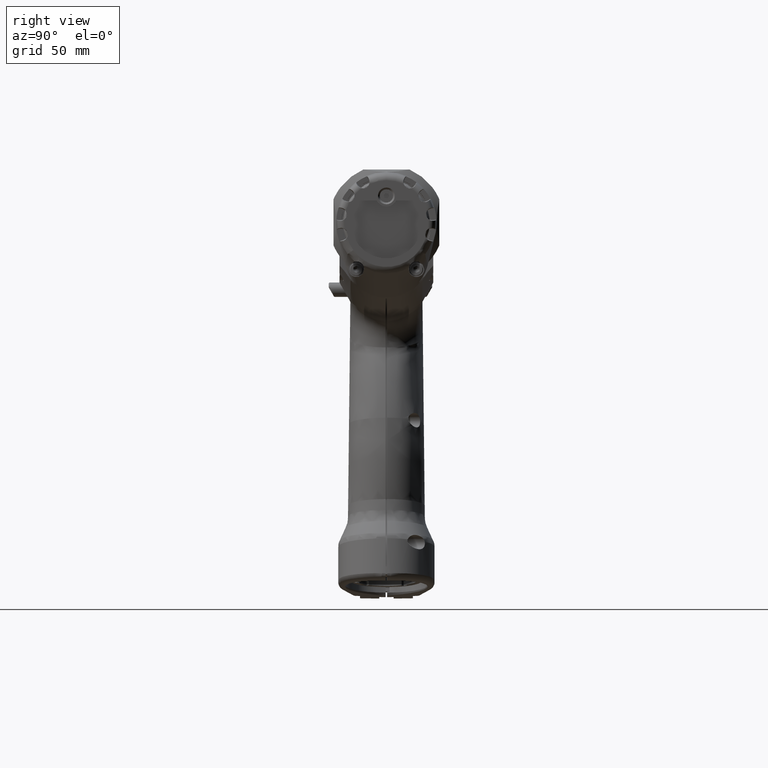
[diagram: clean part render]
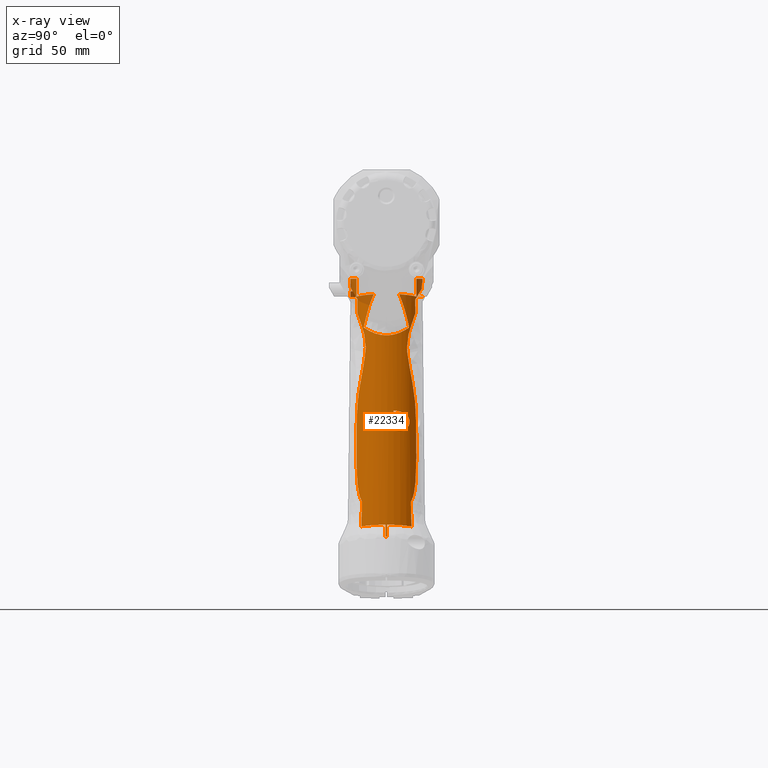
[diagram: x-ray — body ghosted, one internal face saturated and labeled with its STEP entity id]
A machine part, right view, then the same camera in x-ray: the body is ghosted and one INTERNAL B-rep face — a face not visible from any outside direction — is saturated and labeled: STEP entity #22334.
In plain terms, the highlighted cylindrical surface (edge-blend (fillet) strip) has radius 15 mm, axis along (-0.1736, -0, 0.9848).
Its self-contained STEP definition (entity closure, byte-faithful):
#206=FACE_BOUND('',#5345,.T.);
#341=ELLIPSE('',#23630,1401.37150129939,15.);
#346=ELLIPSE('',#23640,86.3815572471617,15.);
#347=ELLIPSE('',#23642,86.3815572471617,15.);
#348=ELLIPSE('',#23645,15.2313991782862,15.);
#349=ELLIPSE('',#23646,15.2313991782862,15.);
#350=ELLIPSE('',#23647,15.2313991782862,15.);
#351=ELLIPSE('',#23648,86.3815572471538,15.);
#352=ELLIPSE('',#23649,15.2313991782862,15.);
#353=ELLIPSE('',#23650,86.3815572471538,15.);
#354=ELLIPSE('',#23651,15.2313991782862,15.);
#355=ELLIPSE('',#23652,15.2313991782862,15.);
#356=ELLIPSE('',#23653,86.3815572471538,15.);
#357=ELLIPSE('',#23654,15.2313991782862,15.);
#358=ELLIPSE('',#23655,86.3815572471538,15.);
#359=ELLIPSE('',#23656,15.2313991782862,15.);
#360=ELLIPSE('',#23657,29.2037089081509,15.);
#361=ELLIPSE('',#23658,29.2037089081509,15.);
#362=ELLIPSE('',#23662,1401.37150129944,15.);
#363=ELLIPSE('',#23663,29.2037089081505,15.);
#364=ELLIPSE('',#23664,15.0031929664305,15.);
#365=ELLIPSE('',#23665,29.2037089081505,15.);
#366=ELLIPSE('',#23666,15.2313991782862,15.);
#367=ELLIPSE('',#23667,15.2313991782862,15.);
#368=ELLIPSE('',#23668,15.2313991782862,15.);
#369=ELLIPSE('',#23669,15.2313991782862,15.);
#441=CYLINDRICAL_SURFACE('',#23643,15.);
#843=LINE('',#33489,#2199);
#844=LINE('',#33495,#2200);
#845=LINE('',#33546,#2201);
#846=LINE('',#33633,#2202);
#847=LINE('',#33637,#2203);
#848=LINE('',#33778,#2204);
#849=LINE('',#33813,#2205);
#850=LINE('',#33819,#2206);
#851=LINE('',#33823,#2207);
#852=LINE('',#33825,#2208);
#853=LINE('',#33863,#2209);
#854=LINE('',#33865,#2210);
#2199=VECTOR('',#25764,10.);
#2200=VECTOR('',#25769,10.);
#2201=VECTOR('',#25790,10.);
#2202=VECTOR('',#25797,10.);
#2203=VECTOR('',#25800,10.);
#2204=VECTOR('',#25811,10.);
#2205=VECTOR('',#25816,10.);
#2206=VECTOR('',#25821,10.);
#2207=VECTOR('',#25824,10.);
#2208=VECTOR('',#25825,10.);
#2209=VECTOR('',#25826,10.);
#2210=VECTOR('',#25827,10.);
#4103=FACE_OUTER_BOUND('',#5344,.T.);
#5344=EDGE_LOOP('',(#14279,#14280,#14281,#14282,#14283,#14284,#14285,#14286,
#14287,#14288,#14289,#14290,#14291,#14292,#14293,#14294,#14295,#14296,#14297,
#14298,#14299,#14300,#14301,#14302,#14303,#14304,#14305,#14306,#14307,#14308,
#14309,#14310,#14311,#14312,#14313,#14314,#14315,#14316,#14317,#14318,#14319,
#14320,#14321,#14322,#14323,#14324,#14325,#14326,#14327,#14328,#14329,#14330,
#14331,#14332,#14333));
#5345=EDGE_LOOP('',(#14334,#14335,#14336,#14337,#14338,#14339));
#6699=CIRCLE('',#23644,15.);
#6700=CIRCLE('',#23659,15.);
#6701=CIRCLE('',#23660,15.);
#6702=CIRCLE('',#23661,15.);
#6703=CIRCLE('',#23670,15.);
#7620=B_SPLINE_CURVE_WITH_KNOTS('',3,(#33350,#33351,#33352,#33353,#33354,
#33355,#33356,#33357,#33358,#33359),.UNSPECIFIED.,.F.,.F.,(4,1,1,1,1,1,
1,4),(-9.43407938206908,-9.34645512437203,-8.67764039799357,-8.00882567161512,
-7.34001094523666,-6.67119621885821,-6.00238149247976,-5.91476437216787),
 .UNSPECIFIED.);
#7629=B_SPLINE_CURVE_WITH_KNOTS('',3,(#33497,#33498,#33499,#33500,#33501,
#33502),.UNSPECIFIED.,.F.,.F.,(4,2,4),(1.41336247686936,1.47222555878552,
1.52746841040386),.UNSPECIFIED.);
#7630=B_SPLINE_CURVE_WITH_KNOTS('',3,(#33514,#33515,#33516,#33517,#33518,
#33519,#33520,#33521,#33522,#33523,#33524,#33525,#33526,#33527,#33528,#33529,
#33530,#33531,#33532,#33533,#33534),.UNSPECIFIED.,.F.,.F.,(4,2,2,2,2,3,
2,2,2,4),(-0.504535755770058,-0.453428281029144,-0.340057146652401,-0.226686012275658,
-0.113343006137829,0.,0.113355987521332,0.226711975042664,0.340070129186033,
0.402312760050447),.UNSPECIFIED.);
#7631=B_SPLINE_CURVE_WITH_KNOTS('',3,(#33550,#33551,#33552,#33553,#33554,
#33555,#33556,#33557,#33558,#33559),.UNSPECIFIED.,.F.,.F.,(4,2,2,2,4),(-0.872896181942799,
-0.695055216908452,-0.495357623600965,-0.246816485951664,-8.48295365042754E-5),
 .UNSPECIFIED.);
#7632=B_SPLINE_CURVE_WITH_KNOTS('',3,(#33561,#33562,#33563,#33564,#33565,
#33566,#33567,#33568,#33569,#33570),.UNSPECIFIED.,.F.,.F.,(4,2,2,2,4),(-0.471555246756401,
-0.363498152746199,-0.241680514144593,-0.121602108709056,-1.1296861390786E-8),
 .UNSPECIFIED.);
#7633=B_SPLINE_CURVE_WITH_KNOTS('',3,(#33573,#33574,#33575,#33576,#33577,
#33578,#33579,#33580,#33581,#33582,#33583,#33584,#33585,#33586),
 .UNSPECIFIED.,.F.,.F.,(4,2,2,2,2,2,4),(-1.8371476758041,-1.41697238843742,
-1.31746704578439,-1.12215688097419,-0.808788608466538,-0.331835297722892,
0.),.UNSPECIFIED.);
#7634=B_SPLINE_CURVE_WITH_KNOTS('',3,(#33588,#33589,#33590,#33591,#33592,
#33593,#33594,#33595,#33596,#33597,#33598,#33599,#33600,#33601,#33602,#33603,
#33604,#33605,#33606,#33607,#33608,#33609,#33610,#33611),.UNSPECIFIED.,
 .F.,.F.,(4,2,2,2,2,2,2,2,2,2,2,4),(-7.1377589528692,-6.25051967891776,
-4.88190908479126,-3.26561527198286,-1.79759368050005,-1.24712298832141,
-0.450616918256725,-0.273538035244728,-0.143653735465666,-0.0894673585636338,
-0.0468714420017971,0.),.UNSPECIFIED.);
#7635=B_SPLINE_CURVE_WITH_KNOTS('',3,(#33613,#33614,#33615,#33616,#33617,
#33618,#33619,#33620,#33621,#33622),.UNSPECIFIED.,.F.,.F.,(4,2,2,2,4),(-3.86148213735537,
-3.39266933772831,-2.87356323469633,-1.51013331390801,0.),.UNSPECIFIED.);
#7636=B_SPLINE_CURVE_WITH_KNOTS('',3,(#33624,#33625,#33626,#33627,#33628,
#33629),.UNSPECIFIED.,.F.,.F.,(4,2,4),(-1.04394372933342,-0.525788596849744,
-0.0103910179322628),.UNSPECIFIED.);
#7637=B_SPLINE_CURVE_WITH_KNOTS('',3,(#33641,#33642,#33643,#33644,#33645,
#33646),.UNSPECIFIED.,.F.,.F.,(4,2,4),(-1.04165762028142,-0.52521994911353,
-0.00757868006631604),.UNSPECIFIED.);
#7638=B_SPLINE_CURVE_WITH_KNOTS('',3,(#33648,#33649,#33650,#33651,#33652,
#33653,#33654,#33655),.UNSPECIFIED.,.F.,.F.,(4,2,2,4),(-4.27574192417831,
-1.78840951903899,-0.537285308337105,-0.0140010815732905),.UNSPECIFIED.);
#7639=B_SPLINE_CURVE_WITH_KNOTS('',3,(#33657,#33658,#33659,#33660,#33661,
#33662,#33663,#33664,#33665,#33666,#33667,#33668,#33669,#33670,#33671,#33672,
#33673,#33674,#33675,#33676,#33677,#33678,#33679,#33680,#33681,#33682,#33683,
#33684,#33685,#33686,#33687,#33688,#33689,#33690,#33691,#33692,#33693,#33694,
#33695,#33696,#33697,#33698,#33699,#33700,#33701,#33702,#33703,#33704,#33705,
#33706,#33707,#33708,#33709,#33710,#33711,#33712,#33713,#33714,#33715,#33716,
#33717,#33718,#33719,#33720,#33721,#33722,#33723,#33724,#33725,#33726,#33727,
#33728,#33729),.UNSPECIFIED.,.F.,.F.,(4,3,3,3,3,3,3,3,3,3,3,3,3,3,3,3,3,
3,3,3,3,3,3,3,4),(-4.74655891951947,-4.4298427899212,-4.22097926067444,
-3.99301161076143,-3.84157828306652,-3.66310109053939,-3.56017584101451,
-3.51094005257503,-3.47046319615862,-3.42012998091653,-3.3887024719645,
-3.30975903656049,-3.17741710986917,-3.05732247338803,-2.85816492430465,
-2.65816524947218,-2.35896705505633,-2.14022206240839,-1.52409366864195,
-1.48371508760935,-0.955927055706892,-0.577116652488574,-0.510136676541541,
-0.476726714547285,0.),.UNSPECIFIED.);
#7640=B_SPLINE_CURVE_WITH_KNOTS('',3,(#33731,#33732,#33733,#33734,#33735,
#33736,#33737,#33738,#33739,#33740,#33741,#33742,#33743,#33744,#33745,#33746),
 .UNSPECIFIED.,.F.,.F.,(4,2,2,2,2,2,2,4),(-2.90599288895172,-2.30042910259975,
-1.66431935605397,-0.880758719504933,-0.343849462214899,-0.181811746087896,
-0.0893653226205398,0.),.UNSPECIFIED.);
#7641=B_SPLINE_CURVE_WITH_KNOTS('',3,(#33752,#33753,#33754,#33755,#33756,
#33757,#33758,#33759,#33760,#33761,#33762,#33763),.UNSPECIFIED.,.F.,.F.,
(4,2,2,2,2,4),(-3.60408821507306,-3.43978750084997,-3.20874769180885,-2.97499778461143,
-2.73919837306629,-2.69880571716325),.UNSPECIFIED.);
#7642=B_SPLINE_CURVE_WITH_KNOTS('',3,(#33767,#33768,#33769,#33770,#33771,
#33772,#33773,#33774),.UNSPECIFIED.,.F.,.F.,(4,2,2,4),(-0.873097869011688,
-0.553712528575425,-0.267935953245929,-2.48722430871137E-5),
 .UNSPECIFIED.);
#7643=B_SPLINE_CURVE_WITH_KNOTS('',3,(#33782,#33783,#33784,#33785,#33786,
#33787,#33788,#33789,#33790,#33791,#33792,#33793,#33794,#33795,#33796,#33797,
#33798,#33799,#33800,#33801,#33802),.UNSPECIFIED.,.F.,.F.,(4,2,2,2,3,2,
2,2,2,4),(-0.402312760050445,-0.340070129186033,-0.226711975042664,-0.113355987521332,
0.,0.11334300613783,0.226686012275659,0.340057146652401,0.453428281029142,
0.504535755727442),.UNSPECIFIED.);
#7644=B_SPLINE_CURVE_WITH_KNOTS('',3,(#33806,#33807,#33808,#33809,#33810,
#33811),.UNSPECIFIED.,.F.,.F.,(4,2,4),(0.460183930456899,0.515552014799421,
0.574415096715581),.UNSPECIFIED.);
#7645=B_SPLINE_CURVE_WITH_KNOTS('',3,(#33827,#33828,#33829,#33830,#33831,
#33832,#33833,#33834,#33835,#33836,#33837,#33838,#33839,#33840,#33841,#33842,
#33843,#33844,#33845,#33846,#33847,#33848,#33849,#33850,#33851,#33852,#33853,
#33854,#33855,#33856,#33857,#33858,#33859,#33860,#33861),.UNSPECIFIED.,
 .F.,.F.,(4,2,2,2,2,2,2,2,3,2,2,2,2,2,2,2,4),(-1.11002845335568,-1.04697574713936,
-0.826601000307019,-0.606226253474676,-0.385851506642333,-0.215064211343963,
-0.134461524434502,-0.067230762217251,0.,0.0672307622172497,0.134461524434499,
0.215064211343962,0.385851506642332,0.606226253474675,0.826601000307017,
1.04697574713936,1.11002845335579),.UNSPECIFIED.);
#7646=B_SPLINE_CURVE_WITH_KNOTS('',3,(#33866,#33867,#33868,#33869,#33870,
#33871,#33872,#33873,#33874,#33875,#33876,#33877,#33878,#33879,#33880,#33881,
#33882,#33883,#33884,#33885,#33886,#33887,#33888,#33889,#33890,#33891,#33892,
#33893,#33894,#33895),.UNSPECIFIED.,.F.,.F.,(4,2,2,2,2,2,2,2,2,2,2,2,2,
2,4),(1.47541733219,1.4816071680005,1.77347020777492,1.89326882561379,2.01306744345265,
2.19627784995242,2.2878830532023,2.37948825645219,2.47109345970207,2.56269866295195,
2.74590906945172,2.86570768729059,2.98550630512946,3.27736934490387,3.28355916545716),
 .UNSPECIFIED.);
#8587=VERTEX_POINT('',#33336);
#8588=VERTEX_POINT('',#33349);
#8594=VERTEX_POINT('',#33395);
#8595=VERTEX_POINT('',#33412);
#8607=VERTEX_POINT('',#33468);
#8610=VERTEX_POINT('',#33476);
#8614=VERTEX_POINT('',#33486);
#8615=VERTEX_POINT('',#33488);
#8616=VERTEX_POINT('',#33490);
#8617=VERTEX_POINT('',#33492);
#8618=VERTEX_POINT('',#33494);
#8619=VERTEX_POINT('',#33496);
#8620=VERTEX_POINT('',#33503);
#8621=VERTEX_POINT('',#33505);
#8622=VERTEX_POINT('',#33507);
#8623=VERTEX_POINT('',#33509);
#8624=VERTEX_POINT('',#33511);
#8625=VERTEX_POINT('',#33513);
#8626=VERTEX_POINT('',#33535);
#8627=VERTEX_POINT('',#33537);
#8628=VERTEX_POINT('',#33539);
#8629=VERTEX_POINT('',#33541);
#8630=VERTEX_POINT('',#33543);
#8631=VERTEX_POINT('',#33545);
#8632=VERTEX_POINT('',#33547);
#8633=VERTEX_POINT('',#33549);
#8634=VERTEX_POINT('',#33560);
#8635=VERTEX_POINT('',#33572);
#8636=VERTEX_POINT('',#33587);
#8637=VERTEX_POINT('',#33612);
#8638=VERTEX_POINT('',#33623);
#8639=VERTEX_POINT('',#33630);
#8640=VERTEX_POINT('',#33632);
#8641=VERTEX_POINT('',#33634);
#8642=VERTEX_POINT('',#33636);
#8643=VERTEX_POINT('',#33638);
#8644=VERTEX_POINT('',#33640);
#8645=VERTEX_POINT('',#33647);
#8646=VERTEX_POINT('',#33656);
#8647=VERTEX_POINT('',#33730);
#8648=VERTEX_POINT('',#33747);
#8649=VERTEX_POINT('',#33749);
#8650=VERTEX_POINT('',#33751);
#8651=VERTEX_POINT('',#33764);
#8652=VERTEX_POINT('',#33766);
#8653=VERTEX_POINT('',#33775);
#8654=VERTEX_POINT('',#33777);
#8655=VERTEX_POINT('',#33779);
#8656=VERTEX_POINT('',#33781);
#8657=VERTEX_POINT('',#33803);
#8658=VERTEX_POINT('',#33805);
#8659=VERTEX_POINT('',#33812);
#8660=VERTEX_POINT('',#33814);
#8661=VERTEX_POINT('',#33816);
#8662=VERTEX_POINT('',#33818);
#8663=VERTEX_POINT('',#33821);
#8664=VERTEX_POINT('',#33822);
#8665=VERTEX_POINT('',#33824);
#8666=VERTEX_POINT('',#33826);
#8667=VERTEX_POINT('',#33862);
#8668=VERTEX_POINT('',#33864);
#10819=EDGE_CURVE('',#8587,#8588,#7620,.T.);
#10827=EDGE_CURVE('',#8594,#8595,#341,.T.);
#10842=EDGE_CURVE('',#8587,#8607,#346,.T.);
#10846=EDGE_CURVE('',#8610,#8588,#347,.T.);
#10851=EDGE_CURVE('',#8614,#8607,#6699,.T.);
#10852=EDGE_CURVE('',#8615,#8614,#843,.T.);
#10853=EDGE_CURVE('',#8616,#8615,#348,.T.);
#10854=EDGE_CURVE('',#8617,#8616,#349,.T.);
#10855=EDGE_CURVE('',#8618,#8617,#844,.T.);
#10856=EDGE_CURVE('',#8619,#8618,#7629,.T.);
#10857=EDGE_CURVE('',#8620,#8619,#350,.T.);
#10858=EDGE_CURVE('',#8621,#8620,#351,.T.);
#10859=EDGE_CURVE('',#8622,#8621,#352,.T.);
#10860=EDGE_CURVE('',#8623,#8622,#353,.T.);
#10861=EDGE_CURVE('',#8624,#8623,#354,.T.);
#10862=EDGE_CURVE('',#8625,#8624,#7630,.T.);
#10863=EDGE_CURVE('',#8626,#8625,#355,.T.);
#10864=EDGE_CURVE('',#8627,#8626,#356,.T.);
#10865=EDGE_CURVE('',#8628,#8627,#357,.T.);
#10866=EDGE_CURVE('',#8629,#8628,#358,.T.);
#10867=EDGE_CURVE('',#8630,#8629,#359,.T.);
#10868=EDGE_CURVE('',#8631,#8630,#845,.T.);
#10869=EDGE_CURVE('',#8632,#8631,#360,.T.);
#10870=EDGE_CURVE('',#8633,#8632,#7631,.T.);
#10871=EDGE_CURVE('',#8634,#8633,#7632,.T.);
#10872=EDGE_CURVE('',#8595,#8634,#361,.T.);
#10873=EDGE_CURVE('',#8635,#8594,#7633,.T.);
#10874=EDGE_CURVE('',#8636,#8635,#7634,.T.);
#10875=EDGE_CURVE('',#8637,#8636,#7635,.T.);
#10876=EDGE_CURVE('',#8638,#8637,#7636,.T.);
#10877=EDGE_CURVE('',#8639,#8638,#6700,.T.);
#10878=EDGE_CURVE('',#8640,#8639,#846,.T.);
#10879=EDGE_CURVE('',#8641,#8640,#6701,.T.);
#10880=EDGE_CURVE('',#8642,#8641,#847,.T.);
#10881=EDGE_CURVE('',#8643,#8642,#6702,.T.);
#10882=EDGE_CURVE('',#8644,#8643,#7637,.T.);
#10883=EDGE_CURVE('',#8645,#8644,#7638,.T.);
#10884=EDGE_CURVE('',#8646,#8645,#7639,.T.);
#10885=EDGE_CURVE('',#8647,#8646,#7640,.T.);
#10886=EDGE_CURVE('',#8648,#8647,#362,.T.);
#10887=EDGE_CURVE('',#8649,#8648,#363,.T.);
#10888=EDGE_CURVE('',#8650,#8649,#7641,.T.);
#10889=EDGE_CURVE('',#8651,#8650,#364,.T.);
#10890=EDGE_CURVE('',#8652,#8651,#7642,.T.);
#10891=EDGE_CURVE('',#8653,#8652,#365,.T.);
#10892=EDGE_CURVE('',#8654,#8653,#848,.T.);
#10893=EDGE_CURVE('',#8655,#8654,#366,.T.);
#10894=EDGE_CURVE('',#8656,#8655,#7643,.T.);
#10895=EDGE_CURVE('',#8657,#8656,#367,.T.);
#10896=EDGE_CURVE('',#8658,#8657,#7644,.T.);
#10897=EDGE_CURVE('',#8659,#8658,#849,.T.);
#10898=EDGE_CURVE('',#8660,#8659,#368,.T.);
#10899=EDGE_CURVE('',#8661,#8660,#369,.T.);
#10900=EDGE_CURVE('',#8662,#8661,#850,.T.);
#10901=EDGE_CURVE('',#8610,#8662,#6703,.T.);
#10902=EDGE_CURVE('',#8663,#8664,#851,.T.);
#10903=EDGE_CURVE('',#8665,#8663,#852,.T.);
#10904=EDGE_CURVE('',#8666,#8665,#7645,.T.);
#10905=EDGE_CURVE('',#8667,#8666,#853,.T.);
#10906=EDGE_CURVE('',#8668,#8667,#854,.T.);
#10907=EDGE_CURVE('',#8664,#8668,#7646,.T.);
#14279=ORIENTED_EDGE('',*,*,#10842,.T.);
#14280=ORIENTED_EDGE('',*,*,#10851,.F.);
#14281=ORIENTED_EDGE('',*,*,#10852,.F.);
#14282=ORIENTED_EDGE('',*,*,#10853,.F.);
#14283=ORIENTED_EDGE('',*,*,#10854,.F.);
#14284=ORIENTED_EDGE('',*,*,#10855,.F.);
#14285=ORIENTED_EDGE('',*,*,#10856,.F.);
#14286=ORIENTED_EDGE('',*,*,#10857,.F.);
#14287=ORIENTED_EDGE('',*,*,#10858,.F.);
#14288=ORIENTED_EDGE('',*,*,#10859,.F.);
#14289=ORIENTED_EDGE('',*,*,#10860,.F.);
#14290=ORIENTED_EDGE('',*,*,#10861,.F.);
#14291=ORIENTED_EDGE('',*,*,#10862,.F.);
#14292=ORIENTED_EDGE('',*,*,#10863,.F.);
#14293=ORIENTED_EDGE('',*,*,#10864,.F.);
#14294=ORIENTED_EDGE('',*,*,#10865,.F.);
#14295=ORIENTED_EDGE('',*,*,#10866,.F.);
#14296=ORIENTED_EDGE('',*,*,#10867,.F.);
#14297=ORIENTED_EDGE('',*,*,#10868,.F.);
#14298=ORIENTED_EDGE('',*,*,#10869,.F.);
#14299=ORIENTED_EDGE('',*,*,#10870,.F.);
#14300=ORIENTED_EDGE('',*,*,#10871,.F.);
#14301=ORIENTED_EDGE('',*,*,#10872,.F.);
#14302=ORIENTED_EDGE('',*,*,#10827,.F.);
#14303=ORIENTED_EDGE('',*,*,#10873,.F.);
#14304=ORIENTED_EDGE('',*,*,#10874,.F.);
#14305=ORIENTED_EDGE('',*,*,#10875,.F.);
#14306=ORIENTED_EDGE('',*,*,#10876,.F.);
#14307=ORIENTED_EDGE('',*,*,#10877,.F.);
#14308=ORIENTED_EDGE('',*,*,#10878,.F.);
#14309=ORIENTED_EDGE('',*,*,#10879,.F.);
#14310=ORIENTED_EDGE('',*,*,#10880,.F.);
#14311=ORIENTED_EDGE('',*,*,#10881,.F.);
#14312=ORIENTED_EDGE('',*,*,#10882,.F.);
#14313=ORIENTED_EDGE('',*,*,#10883,.F.);
#14314=ORIENTED_EDGE('',*,*,#10884,.F.);
#14315=ORIENTED_EDGE('',*,*,#10885,.F.);
#14316=ORIENTED_EDGE('',*,*,#10886,.F.);
#14317=ORIENTED_EDGE('',*,*,#10887,.F.);
#14318=ORIENTED_EDGE('',*,*,#10888,.F.);
#14319=ORIENTED_EDGE('',*,*,#10889,.F.);
#14320=ORIENTED_EDGE('',*,*,#10890,.F.);
#14321=ORIENTED_EDGE('',*,*,#10891,.F.);
#14322=ORIENTED_EDGE('',*,*,#10892,.F.);
#14323=ORIENTED_EDGE('',*,*,#10893,.F.);
#14324=ORIENTED_EDGE('',*,*,#10894,.F.);
#14325=ORIENTED_EDGE('',*,*,#10895,.F.);
#14326=ORIENTED_EDGE('',*,*,#10896,.F.);
#14327=ORIENTED_EDGE('',*,*,#10897,.F.);
#14328=ORIENTED_EDGE('',*,*,#10898,.F.);
#14329=ORIENTED_EDGE('',*,*,#10899,.F.);
#14330=ORIENTED_EDGE('',*,*,#10900,.F.);
#14331=ORIENTED_EDGE('',*,*,#10901,.F.);
#14332=ORIENTED_EDGE('',*,*,#10846,.T.);
#14333=ORIENTED_EDGE('',*,*,#10819,.F.);
#14334=ORIENTED_EDGE('',*,*,#10902,.F.);
#14335=ORIENTED_EDGE('',*,*,#10903,.F.);
#14336=ORIENTED_EDGE('',*,*,#10904,.F.);
#14337=ORIENTED_EDGE('',*,*,#10905,.F.);
#14338=ORIENTED_EDGE('',*,*,#10906,.F.);
#14339=ORIENTED_EDGE('',*,*,#10907,.F.);
#22334=ADVANCED_FACE('',(#4103,#206),#441,.T.);
#23630=AXIS2_PLACEMENT_3D('',#33413,#25725,#25726);
#23640=AXIS2_PLACEMENT_3D('',#33469,#25747,#25748);
#23642=AXIS2_PLACEMENT_3D('',#33477,#25754,#25755);
#23643=AXIS2_PLACEMENT_3D('',#33485,#25760,#25761);
#23644=AXIS2_PLACEMENT_3D('',#33487,#25762,#25763);
#23645=AXIS2_PLACEMENT_3D('',#33491,#25765,#25766);
#23646=AXIS2_PLACEMENT_3D('',#33493,#25767,#25768);
#23647=AXIS2_PLACEMENT_3D('',#33504,#25770,#25771);
#23648=AXIS2_PLACEMENT_3D('',#33506,#25772,#25773);
#23649=AXIS2_PLACEMENT_3D('',#33508,#25774,#25775);
#23650=AXIS2_PLACEMENT_3D('',#33510,#25776,#25777);
#23651=AXIS2_PLACEMENT_3D('',#33512,#25778,#25779);
#23652=AXIS2_PLACEMENT_3D('',#33536,#25780,#25781);
#23653=AXIS2_PLACEMENT_3D('',#33538,#25782,#25783);
#23654=AXIS2_PLACEMENT_3D('',#33540,#25784,#25785);
#23655=AXIS2_PLACEMENT_3D('',#33542,#25786,#25787);
#23656=AXIS2_PLACEMENT_3D('',#33544,#25788,#25789);
#23657=AXIS2_PLACEMENT_3D('',#33548,#25791,#25792);
#23658=AXIS2_PLACEMENT_3D('',#33571,#25793,#25794);
#23659=AXIS2_PLACEMENT_3D('',#33631,#25795,#25796);
#23660=AXIS2_PLACEMENT_3D('',#33635,#25798,#25799);
#23661=AXIS2_PLACEMENT_3D('',#33639,#25801,#25802);
#23662=AXIS2_PLACEMENT_3D('',#33748,#25803,#25804);
#23663=AXIS2_PLACEMENT_3D('',#33750,#25805,#25806);
#23664=AXIS2_PLACEMENT_3D('',#33765,#25807,#25808);
#23665=AXIS2_PLACEMENT_3D('',#33776,#25809,#25810);
#23666=AXIS2_PLACEMENT_3D('',#33780,#25812,#25813);
#23667=AXIS2_PLACEMENT_3D('',#33804,#25814,#25815);
#23668=AXIS2_PLACEMENT_3D('',#33815,#25817,#25818);
#23669=AXIS2_PLACEMENT_3D('',#33817,#25819,#25820);
#23670=AXIS2_PLACEMENT_3D('',#33820,#25822,#25823);
#25725=DIRECTION('center_axis',(-1.54276026246041E-16,-0.999940931510034,
0.0108689231685977));
#25726=DIRECTION('ref_axis',(0.173658126073143,-0.0107037807368006,-0.984747827784709));
#25747=DIRECTION('center_axis',(-1.,7.72441952406839E-17,-1.34059430223488E-14));
#25748=DIRECTION('ref_axis',(-1.34211754342816E-14,-4.62691692072024E-16,
1.));
#25754=DIRECTION('center_axis',(-1.,7.72441952406839E-17,-1.34059430223488E-14));
#25755=DIRECTION('ref_axis',(-1.34211754342816E-14,-4.62691692072024E-16,
1.));
#25760=DIRECTION('center_axis',(-0.173648177666929,-4.82705662880503E-16,
0.984807753012208));
#25761=DIRECTION('ref_axis',(0.880149540446031,-0.44861071582333,0.15519411103879));
#25762=DIRECTION('center_axis',(-0.173648177666927,1.34133137388931E-17,
0.984807753012209));
#25763=DIRECTION('ref_axis',(0.880149540446031,-0.44861071582333,0.15519411103879));
#25764=DIRECTION('',(0.173648177666929,4.82705662880503E-16,-0.984807753012208));
#25765=DIRECTION('center_axis',(1.15130188021346E-16,2.46519032881566E-31,
1.));
#25766=DIRECTION('ref_axis',(1.,7.43482244711992E-15,-1.01867329012778E-16));
#25767=DIRECTION('center_axis',(1.15130188021346E-16,2.46519032881566E-31,
1.));
#25768=DIRECTION('ref_axis',(1.,7.43482244711992E-15,-1.01867329012778E-16));
#25769=DIRECTION('',(-0.173648177666929,-4.82705662880503E-16,0.984807753012208));
#25770=DIRECTION('center_axis',(-2.82534752406804E-15,-1.03276560430247E-16,
-1.));
#25771=DIRECTION('ref_axis',(1.,1.07877815899387E-14,-2.82392790951555E-15));
#25772=DIRECTION('center_axis',(-1.,-1.56242787136567E-16,2.82534752406804E-15));
#25773=DIRECTION('ref_axis',(2.8049035212195E-15,-4.49839145070064E-16,
1.));
#25774=DIRECTION('center_axis',(-2.82534752406804E-15,2.40983151695235E-31,
-1.));
#25775=DIRECTION('ref_axis',(1.,7.36193203097168E-15,-2.81153828075266E-15));
#25776=DIRECTION('center_axis',(1.,4.52204846740511E-17,-2.82534752406804E-15));
#25777=DIRECTION('ref_axis',(2.81643510184094E-15,-4.49839145070064E-16,
1.));
#25778=DIRECTION('center_axis',(-2.82534752406804E-15,-1.03276560430247E-16,
-1.));
#25779=DIRECTION('ref_axis',(1.,1.07877815899387E-14,-2.82392790951555E-15));
#25780=DIRECTION('center_axis',(2.82534752406804E-15,-2.40983151695235E-31,
1.));
#25781=DIRECTION('ref_axis',(1.,7.36193203097168E-15,-2.81153828075266E-15));
#25782=DIRECTION('center_axis',(1.,4.52204846740511E-17,-2.82534752406804E-15));
#25783=DIRECTION('ref_axis',(2.81643510184094E-15,-4.49839145070064E-16,
1.));
#25784=DIRECTION('center_axis',(2.82534752406804E-15,-2.40983151695235E-31,
1.));
#25785=DIRECTION('ref_axis',(1.,7.36193203097168E-15,-2.81153828075266E-15));
#25786=DIRECTION('center_axis',(-1.,-2.67265089599082E-16,2.82534752406804E-15));
#25787=DIRECTION('ref_axis',(2.82787686460103E-15,-4.24134051066061E-16,
1.));
#25788=DIRECTION('center_axis',(2.82534752406804E-15,-2.40983151695235E-31,
1.));
#25789=DIRECTION('ref_axis',(1.,7.36193203097168E-15,-2.81153828075266E-15));
#25790=DIRECTION('',(-0.173648177666929,-4.82705662880503E-16,0.984807753012208));
#25791=DIRECTION('center_axis',(4.44142523832337E-8,-0.853216438342916,
-0.521557004881946));
#25792=DIRECTION('ref_axis',(-0.20238482569094,-0.510763949357575,0.835560033969254));
#25793=DIRECTION('center_axis',(4.44142523832337E-8,-0.853216438342916,
-0.521557004881946));
#25794=DIRECTION('ref_axis',(-0.20238482569094,-0.510763949357575,0.835560033969254));
#25795=DIRECTION('center_axis',(0.17364817766683,-1.14162875363328E-16,
-0.984807753012226));
#25796=DIRECTION('ref_axis',(0.880149540446031,-0.44861071582333,0.15519411103879));
#25797=DIRECTION('',(-0.173648177666929,-4.82705662880503E-16,0.984807753012208));
#25798=DIRECTION('center_axis',(0.173648177666929,4.71844785465692E-16,
-0.984807753012208));
#25799=DIRECTION('ref_axis',(0.880149540446031,-0.44861071582333,0.15519411103879));
#25800=DIRECTION('',(0.173648177666929,4.82705662880503E-16,-0.984807753012208));
#25801=DIRECTION('center_axis',(0.173648177666749,6.64325700477703E-16,
-0.98480775301224));
#25802=DIRECTION('ref_axis',(0.880149540446031,-0.44861071582333,0.15519411103879));
#25803=DIRECTION('center_axis',(-7.36565226176487E-18,0.999940931510034,
0.0108689231685983));
#25804=DIRECTION('ref_axis',(-0.173658126073143,-0.0107037807368011,0.984747827784709));
#25805=DIRECTION('center_axis',(4.44142552580593E-8,0.853216438342913,-0.521557004881951));
#25806=DIRECTION('ref_axis',(0.202384825690939,-0.510763949357581,-0.83556003396925));
#25807=DIRECTION('center_axis',(0.153294732058344,4.96286598718509E-16,
-0.988180512418233));
#25808=DIRECTION('ref_axis',(0.988180512418233,3.79171473092955E-13,0.153294732058344));
#25809=DIRECTION('center_axis',(4.44142552580593E-8,0.853216438342913,-0.521557004881951));
#25810=DIRECTION('ref_axis',(0.202384825690939,-0.510763949357581,-0.83556003396925));
#25811=DIRECTION('',(0.173648177666929,4.82705662880503E-16,-0.984807753012208));
#25812=DIRECTION('center_axis',(2.82534752406804E-15,-2.40983151695235E-31,
1.));
#25813=DIRECTION('ref_axis',(1.,7.36193203097168E-15,-2.81153828075266E-15));
#25814=DIRECTION('center_axis',(-2.82534752406804E-15,-1.03276560430247E-16,
-1.));
#25815=DIRECTION('ref_axis',(1.,1.07877815899387E-14,-2.82392790951555E-15));
#25816=DIRECTION('',(0.173648177666929,4.82705662880503E-16,-0.984807753012208));
#25817=DIRECTION('center_axis',(1.15130188021346E-16,2.46519032881566E-31,
1.));
#25818=DIRECTION('ref_axis',(1.,7.43482244711992E-15,-1.01867329012778E-16));
#25819=DIRECTION('center_axis',(1.15130188021346E-16,2.46519032881566E-31,
1.));
#25820=DIRECTION('ref_axis',(1.,7.43482244711992E-15,-1.01867329012778E-16));
#25821=DIRECTION('',(-0.173648177666929,-4.82705662880503E-16,0.984807753012208));
#25822=DIRECTION('center_axis',(-0.173648177666927,1.34133137388931E-17,
0.984807753012209));
#25823=DIRECTION('ref_axis',(0.880149540446031,-0.44861071582333,0.15519411103879));
#25824=DIRECTION('',(0.173648177666929,4.82705662880503E-16,-0.984807753012208));
#25825=DIRECTION('',(0.173648177666929,4.82705662880503E-16,-0.984807753012208));
#25826=DIRECTION('',(0.173648177666929,4.82705662880503E-16,-0.984807753012208));
#25827=DIRECTION('',(0.173648177666929,4.82705662880503E-16,-0.984807753012208));
#33336=CARTESIAN_POINT('',(136.535001432441,-9.45071693528291,-43.7180939579409));
#33349=CARTESIAN_POINT('',(136.535001432441,9.45071693528287,-43.7180939579409));
#33350=CARTESIAN_POINT('Ctrl Pts',(136.535080193097,-9.45068407911154,-43.717945459147));
#33351=CARTESIAN_POINT('Ctrl Pts',(136.654892379856,-9.32476535014423,-43.8093515791713));
#33352=CARTESIAN_POINT('Ctrl Pts',(137.671704971665,-8.22141898002085,-44.5911445084343));
#33353=CARTESIAN_POINT('Ctrl Pts',(139.293199019466,-5.87912362043757,-45.9213584468116));
#33354=CARTESIAN_POINT('Ctrl Pts',(140.5642028188,-2.03535084101495,-47.0186379445665));
#33355=CARTESIAN_POINT('Ctrl Pts',(140.565584082015,2.03607637779492,-47.0204394757852));
#33356=CARTESIAN_POINT('Ctrl Pts',(139.293105809227,5.87800959762609,-45.9207805019376));
#33357=CARTESIAN_POINT('Ctrl Pts',(137.671699961989,8.2214602986374,-44.5912340413234));
#33358=CARTESIAN_POINT('Ctrl Pts',(136.654910660979,9.32489755009206,-43.8094889141618));
#33359=CARTESIAN_POINT('Ctrl Pts',(136.535109648288,9.45081244878403,-43.7180917468964));
#33395=CARTESIAN_POINT('',(132.740278969586,-12.0525907698339,-37.8546546908895));
#33412=CARTESIAN_POINT('',(131.807936835924,-11.9898552606135,-32.082987842632));
#33413=CARTESIAN_POINT('Origin',(-71.8450394580965,-5.67463956833945E-13,
1070.9836961327));
#33468=CARTESIAN_POINT('',(136.535001432503,-5.26294295865331,-29.9082315445797));
#33469=CARTESIAN_POINT('Origin',(136.535001432504,1.17890311363408E-14,
-110.798241341368));
#33476=CARTESIAN_POINT('',(136.535001432503,5.26294295865325,-29.9082315445797));
#33477=CARTESIAN_POINT('Origin',(136.535001432504,1.17890311363408E-14,
-110.798241341368));
#33485=CARTESIAN_POINT('Origin',(139.632478674507,2.03993708787251E-14,
-128.364907710617));
#33486=CARTESIAN_POINT('',(130.867589578785,-12.5,-30.9075491651773));
#33487=CARTESIAN_POINT('Origin',(122.701995060348,-2.66638371875028E-14,
-32.3473637923027));
#33488=CARTESIAN_POINT('',(129.561438800039,-12.5,-23.5));
#33489=CARTESIAN_POINT('',(147.798073192943,-12.5,-126.925093083492));
#33490=CARTESIAN_POINT('',(121.141966115622,-15.,-23.5));
#33491=CARTESIAN_POINT('Origin',(121.141966115622,-3.10003918003658E-14,
-23.5));
#33492=CARTESIAN_POINT('',(112.722493431205,-12.5,-23.5));
#33493=CARTESIAN_POINT('Origin',(121.141966115622,-3.10003918003658E-14,
-23.5));
#33494=CARTESIAN_POINT('',(113.016234007993,-12.5,-25.1658855928223));
#33495=CARTESIAN_POINT('',(131.466884156071,-12.5,-129.804722337743));
#33496=CARTESIAN_POINT('',(114.,-13.1071926643408,-25.));
#33497=CARTESIAN_POINT('Ctrl Pts',(114.,-13.1071926643408,-25.));
#33498=CARTESIAN_POINT('Ctrl Pts',(113.819368433468,-13.008201287531,-25.));
#33499=CARTESIAN_POINT('Ctrl Pts',(113.643988650252,-12.9056471357192,-25.0164945707418));
#33500=CARTESIAN_POINT('Ctrl Pts',(113.324266096943,-12.7074861971145,-25.0728702832312));
#33501=CARTESIAN_POINT('Ctrl Pts',(113.16870972138,-12.6057007629015,-25.1129588580875));
#33502=CARTESIAN_POINT('Ctrl Pts',(113.016234007993,-12.5,-25.1658855928226));
#33503=CARTESIAN_POINT('',(114.5,-13.3693366535604,-25.));
#33504=CARTESIAN_POINT('Origin',(121.406456586685,-3.02651635366706E-14,
-25.0000000000001));
#33505=CARTESIAN_POINT('',(114.5,-13.158522364362,-27.3));
#33506=CARTESIAN_POINT('Origin',(114.5,-4.94636702507779E-14,14.168461678044));
#33507=CARTESIAN_POINT('',(121.5,-14.9968525381327,-27.3000000000001));
#33508=CARTESIAN_POINT('Origin',(121.812008642314,-2.9137813532338E-14,
-27.3000000000001));
#33509=CARTESIAN_POINT('',(121.5,-14.9997171135249,-25.0000000000001));
#33510=CARTESIAN_POINT('Origin',(121.5,-3.00051323866804E-14,-25.5305110592797));
#33511=CARTESIAN_POINT('',(122.,-14.9886066455128,-25.0000000000001));
#33512=CARTESIAN_POINT('Origin',(121.406456586685,-3.02651635366706E-14,
-25.0000000000001));
#33513=CARTESIAN_POINT('',(122.,-14.9930256842242,-31.));
#33514=CARTESIAN_POINT('Ctrl Pts',(122.,-14.9930256842242,-31.0000000000001));
#33515=CARTESIAN_POINT('Ctrl Pts',(122.177804640131,-14.9983672208142,-31.0000000000001));
#33516=CARTESIAN_POINT('Ctrl Pts',(122.353175915649,-15.0005873555609,-30.9840053927919));
#33517=CARTESIAN_POINT('Ctrl Pts',(122.893103763297,-14.9982633962761,-30.8888015456157));
#33518=CARTESIAN_POINT('Ctrl Pts',(123.276162101811,-14.9808335582192,-30.7443377645032));
#33519=CARTESIAN_POINT('Ctrl Pts',(123.950581504829,-14.9208744315649,-30.314132923067));
#33520=CARTESIAN_POINT('Ctrl Pts',(124.242038413505,-14.879124713567,-30.0284338229069));
#33521=CARTESIAN_POINT('Ctrl Pts',(124.673115211196,-14.8008721365965,-29.4126800744059));
#33522=CARTESIAN_POINT('Ctrl Pts',(124.841818235672,-14.7592092853035,-29.0411442998591));
#33523=CARTESIAN_POINT('Ctrl Pts',(125.015310816491,-14.7002386112781,-28.2604083369222));
#33524=CARTESIAN_POINT('Ctrl Pts',(125.020029280594,-14.6838165217437,-27.8511257043134));
#33525=CARTESIAN_POINT('Ctrl Pts',(124.954423259037,-14.6838165217437,-27.4790554669993));
#33526=CARTESIAN_POINT('Ctrl Pts',(124.888809723501,-14.6838165217437,-27.1069426157947));
#33527=CARTESIAN_POINT('Ctrl Pts',(124.744368540747,-14.7002424494298,-26.7239172682107));
#33528=CARTESIAN_POINT('Ctrl Pts',(124.314236761632,-14.7592244289154,-26.0495501665209));
#33529=CARTESIAN_POINT('Ctrl Pts',(124.028584772232,-14.8008943881425,-25.7581065831299));
#33530=CARTESIAN_POINT('Ctrl Pts',(123.4128679617,-14.8791470200449,-25.3269770309928));
#33531=CARTESIAN_POINT('Ctrl Pts',(123.041303549303,-14.9208896883837,-25.1582342985082));
#33532=CARTESIAN_POINT('Ctrl Pts',(122.436535117188,-14.9673217231134,-25.0238180874986));
#33533=CARTESIAN_POINT('Ctrl Pts',(122.216480535347,-14.9802925884914,-25.));
#33534=CARTESIAN_POINT('Ctrl Pts',(122.,-14.9886066455128,-25.));
#33535=CARTESIAN_POINT('',(121.5,-14.969901237139,-31.));
#33536=CARTESIAN_POINT('Origin',(122.464418470936,-2.73242504818898E-14,
-31.));
#33537=CARTESIAN_POINT('',(121.5,-14.9898994753828,-28.7000000000001));
#33538=CARTESIAN_POINT('Origin',(121.5,-3.00051323866804E-14,-25.5305110592797));
#33539=CARTESIAN_POINT('',(114.5,-13.0225348392855,-28.7));
#33540=CARTESIAN_POINT('Origin',(122.058866415306,-2.84516004862224E-14,
-28.7000000000001));
#33541=CARTESIAN_POINT('',(114.5,-12.7859589433283,-31.));
#33542=CARTESIAN_POINT('Origin',(114.5,-4.94636702507779E-14,14.1684616780439));
#33543=CARTESIAN_POINT('',(114.044945786518,-12.5,-30.9999999999996));
#33544=CARTESIAN_POINT('Origin',(122.464418470936,-2.73242504818898E-14,
-31.));
#33545=CARTESIAN_POINT('',(114.088752464773,-12.4999999637174,-31.2484403329555));
#33546=CARTESIAN_POINT('',(131.466884156071,-12.5,-129.804722337743));
#33547=CARTESIAN_POINT('',(114.203830960662,-12.5912623944485,-31.0991458670932));
#33548=CARTESIAN_POINT('Origin',(126.113897349737,-1.71794614894075E-14,
-51.6972232164235));
#33549=CARTESIAN_POINT('',(122.47521359066,-14.9999999954091,-31.0633595982119));
#33550=CARTESIAN_POINT('Ctrl Pts',(122.468049013012,-14.9999981103182,-31.0639493729982));
#33551=CARTESIAN_POINT('Ctrl Pts',(121.875234115458,-14.9997048419072,-31.0665124924692));
#33552=CARTESIAN_POINT('Ctrl Pts',(121.282884451964,-14.9652765425679,-31.0690653204286));
#33553=CARTESIAN_POINT('Ctrl Pts',(120.032805101698,-14.8200557609829,-31.0744354909499));
#33554=CARTESIAN_POINT('Ctrl Pts',(119.377184882588,-14.7005372301785,-31.0772416315717));
#33555=CARTESIAN_POINT('Ctrl Pts',(117.927692037554,-14.3379541402155,-31.0834238841447));
#33556=CARTESIAN_POINT('Ctrl Pts',(117.141409636748,-14.0723677032494,-31.0867621941947));
#33557=CARTESIAN_POINT('Ctrl Pts',(115.625162624957,-13.4192718754171,-31.0931732756417));
#33558=CARTESIAN_POINT('Ctrl Pts',(114.897142367959,-13.033659335013,-31.096238045821));
#33559=CARTESIAN_POINT('Ctrl Pts',(114.203830962933,-12.591262390893,-31.0991458674674));
#33560=CARTESIAN_POINT('',(125.086137133208,-14.6647287572918,-27.7071560199408));
#33561=CARTESIAN_POINT('Ctrl Pts',(125.086137133208,-14.664728757292,-27.7071560199408));
#33562=CARTESIAN_POINT('Ctrl Pts',(125.120107057662,-14.6709030924565,-28.0651481703766));
#33563=CARTESIAN_POINT('Ctrl Pts',(125.091466295499,-14.6907043414886,-28.4256797275995));
#33564=CARTESIAN_POINT('Ctrl Pts',(124.900758450778,-14.7526864959131,-29.1649687178093));
#33565=CARTESIAN_POINT('Ctrl Pts',(124.72406623769,-14.796532925008,-29.5326083563856));
#33566=CARTESIAN_POINT('Ctrl Pts',(124.244017812775,-14.8825829720232,-30.1742458998721));
#33567=CARTESIAN_POINT('Ctrl Pts',(123.946265191588,-14.9237666931995,-30.4444888506152));
#33568=CARTESIAN_POINT('Ctrl Pts',(123.259184005266,-14.9830502743328,-30.8606103685094));
#33569=CARTESIAN_POINT('Ctrl Pts',(122.875687406252,-15.0000100221027,-31.0007376401165));
#33570=CARTESIAN_POINT('Ctrl Pts',(122.475213241235,-14.9999999954091,-31.0633573635204));
#33571=CARTESIAN_POINT('Origin',(126.113897349737,-1.71794614894075E-14,
-51.6972232164235));
#33572=CARTESIAN_POINT('',(138.381794585313,-8.729223194235,-51.0242107575974));
#33573=CARTESIAN_POINT('Ctrl Pts',(138.381794584923,-8.72922319452407,-51.0242107565744));
#33574=CARTESIAN_POINT('Ctrl Pts',(138.19000465178,-8.86791524073953,-50.5080663406445));
#33575=CARTESIAN_POINT('Ctrl Pts',(138.172412567684,-8.84301654447822,-50.3101568941548));
#33576=CARTESIAN_POINT('Ctrl Pts',(138.082674427221,-8.87086512306794,-49.9187335872436));
#33577=CARTESIAN_POINT('Ctrl Pts',(138.063908005304,-8.8782064534105,-49.8432978403017));
#33578=CARTESIAN_POINT('Ctrl Pts',(137.945697578685,-8.90974280217198,-49.3064997324508));
#33579=CARTESIAN_POINT('Ctrl Pts',(137.857479826227,-8.92462264401255,-48.868983066096));
#33580=CARTESIAN_POINT('Ctrl Pts',(137.521075830228,-9.03922549666011,-47.453431574995));
#33581=CARTESIAN_POINT('Ctrl Pts',(137.283176174087,-9.16023815455609,-46.6098041804272));
#33582=CARTESIAN_POINT('Ctrl Pts',(136.275922799329,-9.82837807461121,-44.0051720165324));
#33583=CARTESIAN_POINT('Ctrl Pts',(135.505580511857,-10.4129742547899,-42.5708405939354));
#33584=CARTESIAN_POINT('Ctrl Pts',(133.878203821474,-11.4425036022051,-39.7619509350102));
#33585=CARTESIAN_POINT('Ctrl Pts',(133.302469384116,-11.7589931123292,-38.7608768651043));
#33586=CARTESIAN_POINT('Ctrl Pts',(132.740278969586,-12.0525907698341,-37.8546546908895));
#33587=CARTESIAN_POINT('',(140.369945112837,-12.3586383594926,-83.5926167268763));
#33588=CARTESIAN_POINT('Ctrl Pts',(140.36974717501,-12.3587238084453,-83.5925695510866));
#33589=CARTESIAN_POINT('Ctrl Pts',(140.092193838639,-12.326393032915,-81.7478010469482));
#33590=CARTESIAN_POINT('Ctrl Pts',(139.833517780224,-12.2673208806953,-79.7849749674432));
#33591=CARTESIAN_POINT('Ctrl Pts',(139.349391463125,-12.0110616920366,-74.9929143700912));
#33592=CARTESIAN_POINT('Ctrl Pts',(139.256436045092,-11.7842199121103,-72.7086384483381));
#33593=CARTESIAN_POINT('Ctrl Pts',(139.244112147049,-11.078599038232,-67.8264578929383));
#33594=CARTESIAN_POINT('Ctrl Pts',(139.358180453419,-10.5998309618177,-65.5596268537416));
#33595=CARTESIAN_POINT('Ctrl Pts',(139.310386689314,-9.62280947791444,-60.1757153010027));
#33596=CARTESIAN_POINT('Ctrl Pts',(139.19014049543,-9.35181744652282,-58.3023390021351));
#33597=CARTESIAN_POINT('Ctrl Pts',(139.082117509601,-9.07638661736032,-56.4683596560912));
#33598=CARTESIAN_POINT('Ctrl Pts',(139.053919520405,-8.99827530397692,-55.9685694548995));
#33599=CARTESIAN_POINT('Ctrl Pts',(138.988437762994,-8.79852407327259,-54.746851775323));
#33600=CARTESIAN_POINT('Ctrl Pts',(138.981902987459,-8.71928018513928,-54.3853022342096));
#33601=CARTESIAN_POINT('Ctrl Pts',(138.879747744604,-8.64370027063842,-53.4983342858799));
#33602=CARTESIAN_POINT('Ctrl Pts',(138.83640773754,-8.61799614025392,-53.148410288158));
#33603=CARTESIAN_POINT('Ctrl Pts',(138.693038136279,-8.59530080549124,-52.2437857614908));
#33604=CARTESIAN_POINT('Ctrl Pts',(138.66807915444,-8.61086989754768,-52.1650328029892));
#33605=CARTESIAN_POINT('Ctrl Pts',(138.605252885436,-8.61823000952501,-51.8384696592629));
#33606=CARTESIAN_POINT('Ctrl Pts',(138.597128556427,-8.61084322224089,-51.762553515299));
#33607=CARTESIAN_POINT('Ctrl Pts',(138.567503442683,-8.61215858133412,-51.5998524075406));
#33608=CARTESIAN_POINT('Ctrl Pts',(138.549675552648,-8.61764562132621,-51.520793315775));
#33609=CARTESIAN_POINT('Ctrl Pts',(138.482144723981,-8.65665008372313,-51.2959757702894));
#33610=CARTESIAN_POINT('Ctrl Pts',(138.435648749025,-8.68935896222302,-51.1653522755701));
#33611=CARTESIAN_POINT('Ctrl Pts',(138.381794584923,-8.72922319452405,-51.0242107565744));
#33612=CARTESIAN_POINT('',(148.714856077778,-10.1512240198997,-116.276679110799));
#33613=CARTESIAN_POINT('Ctrl Pts',(148.713897300286,-10.1519860891854,-116.276871947655));
#33614=CARTESIAN_POINT('Ctrl Pts',(148.237312737441,-10.5357351522684,-115.605728736604));
#33615=CARTESIAN_POINT('Ctrl Pts',(147.783724180708,-10.8424015851185,-114.859075563037));
#33616=CARTESIAN_POINT('Ctrl Pts',(146.85723028838,-11.3912050837792,-113.083729886819));
#33617=CARTESIAN_POINT('Ctrl Pts',(146.44037511028,-11.5895583795156,-112.116675540512));
#33618=CARTESIAN_POINT('Ctrl Pts',(145.083272906442,-12.1490268431716,-108.474783904294));
#33619=CARTESIAN_POINT('Ctrl Pts',(144.17633967325,-12.337962599104,-105.000612266313));
#33620=CARTESIAN_POINT('Ctrl Pts',(142.195693707673,-12.5063700227282,-95.1991149334793));
#33621=CARTESIAN_POINT('Ctrl Pts',(141.113963767375,-12.4491587559239,-88.5703630902937));
#33622=CARTESIAN_POINT('Ctrl Pts',(140.369952149918,-12.3586001326097,-83.5926965774589));
#33623=CARTESIAN_POINT('',(150.237098089555,-10.4424898320092,-126.495027187599));
#33624=CARTESIAN_POINT('Ctrl Pts',(150.237098089556,-10.4424898320088,-126.495027187599));
#33625=CARTESIAN_POINT('Ctrl Pts',(149.985339775677,-10.3923110598655,-124.787007674143));
#33626=CARTESIAN_POINT('Ctrl Pts',(149.732242209348,-10.3428673666545,-123.079413516614));
#33627=CARTESIAN_POINT('Ctrl Pts',(149.224711083616,-10.2457186051675,-119.673188392042));
#33628=CARTESIAN_POINT('Ctrl Pts',(148.97034543254,-10.1980159217038,-117.974918268687));
#33629=CARTESIAN_POINT('Ctrl Pts',(148.714731071392,-10.1510608629016,-116.276702437913));
#33630=CARTESIAN_POINT('',(154.401640250714,-0.299999999998126,-125.760706041027));
#33631=CARTESIAN_POINT('Origin',(139.632478674506,2.03993708787235E-14,
-128.364907710614));
#33632=CARTESIAN_POINT('',(155.261198730381,-0.299999999998125,-130.635504419662));
#33633=CARTESIAN_POINT('',(154.40164025093,-0.299999999998126,-125.760706042251));
#33634=CARTESIAN_POINT('',(155.261198730381,0.299999999998271,-130.635504419662));
#33635=CARTESIAN_POINT('Origin',(140.492037153958,2.26198169279754E-14,
-133.239706088028));
#33636=CARTESIAN_POINT('',(154.40164025093,0.299999999998273,-125.760706042254));
#33637=CARTESIAN_POINT('',(154.40164025093,0.299999999998268,-125.760706042251));
#33638=CARTESIAN_POINT('',(150.237098069203,10.4424898500893,-126.49502719119));
#33639=CARTESIAN_POINT('Origin',(139.632478674506,2.03993708787237E-14,
-128.364907710614));
#33640=CARTESIAN_POINT('',(148.710493656417,10.1547256762071,-116.272076870772));
#33641=CARTESIAN_POINT('Ctrl Pts',(148.713971859237,10.1509214023611,-116.271658512308));
#33642=CARTESIAN_POINT('Ctrl Pts',(148.970100574396,10.1979690075916,-117.97327496818));
#33643=CARTESIAN_POINT('Ctrl Pts',(149.224975583525,10.2457672363586,-119.67494557468));
#33644=CARTESIAN_POINT('Ctrl Pts',(149.732752006216,10.3429669577417,-123.08285301649));
#33645=CARTESIAN_POINT('Ctrl Pts',(149.985593339738,10.3923615985481,-124.788727944499));
#33646=CARTESIAN_POINT('Ctrl Pts',(150.237098089716,10.4424898320426,-126.495027188697));
#33647=CARTESIAN_POINT('',(140.369757138065,12.358708739551,-83.5926423680879));
#33648=CARTESIAN_POINT('Ctrl Pts',(140.369944211814,12.3585991664074,-83.5926434690778));
#33649=CARTESIAN_POINT('Ctrl Pts',(141.00124860849,12.4354398952738,-87.8162676619854));
#33650=CARTESIAN_POINT('Ctrl Pts',(142.338634511023,12.5489014239806,-96.3529856677017));
#33651=CARTESIAN_POINT('Ctrl Pts',(144.436726124408,12.2708919696454,-105.921197639868));
#33652=CARTESIAN_POINT('Ctrl Pts',(145.389989661074,12.0885346590814,-109.616516096692));
#33653=CARTESIAN_POINT('Ctrl Pts',(147.073718264322,11.2755445304683,-113.556752210045));
#33654=CARTESIAN_POINT('Ctrl Pts',(147.799224766817,10.8879234970363,-114.987754230828));
#33655=CARTESIAN_POINT('Ctrl Pts',(148.710493656417,10.1547256762072,-116.272076870772));
#33656=CARTESIAN_POINT('',(138.381794586659,8.72922319323894,-51.024210761125));
#33657=CARTESIAN_POINT('Ctrl Pts',(138.381794584922,8.72922319452467,-51.0242107565744));
#33658=CARTESIAN_POINT('Ctrl Pts',(138.463705886918,8.6685903497808,-51.23888469645));
#33659=CARTESIAN_POINT('Ctrl Pts',(138.549216810335,8.61334930341416,-51.5009517945339));
#33660=CARTESIAN_POINT('Ctrl Pts',(138.579887245572,8.61161274814237,-51.6678804355707));
#33661=CARTESIAN_POINT('Ctrl Pts',(138.600113355796,8.61046754892799,-51.7779642040973));
#33662=CARTESIAN_POINT('Ctrl Pts',(138.604360671202,8.62308792620173,-51.8530226324106));
#33663=CARTESIAN_POINT('Ctrl Pts',(138.637686779811,8.61305563947032,-52.0015048657893));
#33664=CARTESIAN_POINT('Ctrl Pts',(138.674061127632,8.60210572955708,-52.1635683237767));
#33665=CARTESIAN_POINT('Ctrl Pts',(138.720537245215,8.5995716466901,-52.4169435315682));
#33666=CARTESIAN_POINT('Ctrl Pts',(138.779365723272,8.60922632844401,-52.7895449610193));
#33667=CARTESIAN_POINT('Ctrl Pts',(138.818444040739,8.61563969712328,-53.0370549668784));
#33668=CARTESIAN_POINT('Ctrl Pts',(138.860914812761,8.63219872572216,-53.3448219679852));
#33669=CARTESIAN_POINT('Ctrl Pts',(138.888401993013,8.65048069112845,-53.5750289630617));
#33670=CARTESIAN_POINT('Ctrl Pts',(138.92079799749,8.67202755871209,-53.8463476932698));
#33671=CARTESIAN_POINT('Ctrl Pts',(138.941846107672,8.69593561934761,-54.0633868712499));
#33672=CARTESIAN_POINT('Ctrl Pts',(138.959625666722,8.72246029600488,-54.2734000582474));
#33673=CARTESIAN_POINT('Ctrl Pts',(138.969878884658,8.73775669844632,-54.39451166567));
#33674=CARTESIAN_POINT('Ctrl Pts',(138.978904672791,8.75412929075733,-54.5133225096769));
#33675=CARTESIAN_POINT('Ctrl Pts',(138.987200318937,8.77297884403406,-54.6386395663924));
#33676=CARTESIAN_POINT('Ctrl Pts',(138.991168661793,8.78199580169604,-54.6985868011165));
#33677=CARTESIAN_POINT('Ctrl Pts',(138.994533275889,8.79215204919288,-54.7599406728175));
#33678=CARTESIAN_POINT('Ctrl Pts',(138.998828237734,8.80164563849247,-54.8239156857977));
#33679=CARTESIAN_POINT('Ctrl Pts',(139.002359135876,8.80945034037975,-54.8765096930577));
#33680=CARTESIAN_POINT('Ctrl Pts',(139.000182364098,8.82512225511257,-54.9297404559188));
#33681=CARTESIAN_POINT('Ctrl Pts',(139.0042486883,8.83310053227904,-54.9862773253877));
#33682=CARTESIAN_POINT('Ctrl Pts',(139.009305186987,8.84302156808649,-55.0565812637869));
#33683=CARTESIAN_POINT('Ctrl Pts',(139.012611364072,8.85600822196516,-55.1299556610104));
#33684=CARTESIAN_POINT('Ctrl Pts',(139.017076301386,8.86848138720089,-55.2079349634485));
#33685=CARTESIAN_POINT('Ctrl Pts',(139.019864159398,8.87626949511771,-55.2566243867976));
#33686=CARTESIAN_POINT('Ctrl Pts',(139.018191228427,8.89023660682587,-55.3062482352805));
#33687=CARTESIAN_POINT('Ctrl Pts',(139.021112429008,8.89867964079958,-55.3586458637502));
#33688=CARTESIAN_POINT('Ctrl Pts',(139.028450255549,8.91988787935696,-55.490264593212));
#33689=CARTESIAN_POINT('Ctrl Pts',(139.035657879657,8.94406534659424,-55.6342542108837));
#33690=CARTESIAN_POINT('Ctrl Pts',(139.044275145254,8.97006321008093,-55.7948299854296));
#33691=CARTESIAN_POINT('Ctrl Pts',(139.058721255005,9.01364640767143,-56.0640215562624));
#33692=CARTESIAN_POINT('Ctrl Pts',(139.074295422328,9.05549347588039,-56.3341389904961));
#33693=CARTESIAN_POINT('Ctrl Pts',(139.09140921074,9.09979094931673,-56.625866455167));
#33694=CARTESIAN_POINT('Ctrl Pts',(139.106939241545,9.13998901127923,-56.8905966483652));
#33695=CARTESIAN_POINT('Ctrl Pts',(139.124638317073,9.18427447128783,-57.1874183785814));
#33696=CARTESIAN_POINT('Ctrl Pts',(139.143192006913,9.23263842400897,-57.5101561983434));
#33697=CARTESIAN_POINT('Ctrl Pts',(139.17396030351,9.31284222469614,-58.0453647227508));
#33698=CARTESIAN_POINT('Ctrl Pts',(139.207553323627,9.40371420463711,-58.6519021490626));
#33699=CARTESIAN_POINT('Ctrl Pts',(139.237309203496,9.50565671442511,-59.3015797964191));
#33700=CARTESIAN_POINT('Ctrl Pts',(139.267190904318,9.60803028200036,-59.9540045667342));
#33701=CARTESIAN_POINT('Ctrl Pts',(139.289900019125,9.71057542666085,-60.5799559925218));
#33702=CARTESIAN_POINT('Ctrl Pts',(139.305155829255,9.8091534722585,-61.1571764181009));
#33703=CARTESIAN_POINT('Ctrl Pts',(139.327978420586,9.95662557828345,-62.0206943676069));
#33704=CARTESIAN_POINT('Ctrl Pts',(139.336511787439,10.0975117557482,-62.7991591658282));
#33705=CARTESIAN_POINT('Ctrl Pts',(139.336733965689,10.2331431403499,-63.529200606565));
#33706=CARTESIAN_POINT('Ctrl Pts',(139.336896401093,10.3323037863072,-64.0629368140928));
#33707=CARTESIAN_POINT('Ctrl Pts',(139.332622772999,10.428644773096,-64.5707970224923));
#33708=CARTESIAN_POINT('Ctrl Pts',(139.326052996845,10.5227648583046,-65.067085527589));
#33709=CARTESIAN_POINT('Ctrl Pts',(139.307548227525,10.787868329789,-66.4649572493072));
#33710=CARTESIAN_POINT('Ctrl Pts',(139.269793183237,11.0407134340704,-67.7958568396403));
#33711=CARTESIAN_POINT('Ctrl Pts',(139.255301362649,11.2817065258283,-69.2975068753857));
#33712=CARTESIAN_POINT('Ctrl Pts',(139.254351626915,11.2975002454203,-69.3959189892639));
#33713=CARTESIAN_POINT('Ctrl Pts',(139.253525054086,11.3131764815249,-69.4947594200173));
#33714=CARTESIAN_POINT('Ctrl Pts',(139.252838516681,11.328731609441,-69.5940853390686));
#33715=CARTESIAN_POINT('Ctrl Pts',(139.24386479308,11.5320525320421,-70.8923734411367));
#33716=CARTESIAN_POINT('Ctrl Pts',(139.25781201436,11.7151346950566,-72.2735128585973));
#33717=CARTESIAN_POINT('Ctrl Pts',(139.335810749481,11.8694003281254,-73.8655668518821));
#33718=CARTESIAN_POINT('Ctrl Pts',(139.391792944066,11.980121722195,-75.0082350798213));
#33719=CARTESIAN_POINT('Ctrl Pts',(139.486074618143,12.0774805127862,-76.3008647813642));
#33720=CARTESIAN_POINT('Ctrl Pts',(139.615391665474,12.1512983580549,-77.6216055791072));
#33721=CARTESIAN_POINT('Ctrl Pts',(139.638257068974,12.1643505801126,-77.855134505751));
#33722=CARTESIAN_POINT('Ctrl Pts',(139.662108016736,12.1767152544794,-78.0892671776187));
#33723=CARTESIAN_POINT('Ctrl Pts',(139.686866304958,12.1884256294522,-78.3236899904733));
#33724=CARTESIAN_POINT('Ctrl Pts',(139.699215868493,12.194266825679,-78.4406213144597));
#33725=CARTESIAN_POINT('Ctrl Pts',(139.711791034013,12.199945295786,-78.557624834788));
#33726=CARTESIAN_POINT('Ctrl Pts',(139.724581456467,12.2054653900659,-78.6746616721607));
#33727=CARTESIAN_POINT('Ctrl Pts',(139.90708798176,12.2842316098696,-80.3446601885099));
#33728=CARTESIAN_POINT('Ctrl Pts',(140.133358341343,12.3311880763262,-82.021402434957));
#33729=CARTESIAN_POINT('Ctrl Pts',(140.36974717501,12.3587238084455,-83.592569551087));
#33730=CARTESIAN_POINT('',(132.740278969586,12.0525907698341,-37.8546546908893));
#33731=CARTESIAN_POINT('Ctrl Pts',(132.740278969586,12.0525907698342,-37.85465469089));
#33732=CARTESIAN_POINT('Ctrl Pts',(133.17671311375,11.8246679183057,-38.5581641937272));
#33733=CARTESIAN_POINT('Ctrl Pts',(133.60247484531,11.5913895435368,-39.29492264721));
#33734=CARTESIAN_POINT('Ctrl Pts',(134.480828606136,11.0685947171274,-40.8017048195452));
#33735=CARTESIAN_POINT('Ctrl Pts',(134.90589653928,10.792582491677,-41.5263733246177));
#33736=CARTESIAN_POINT('Ctrl Pts',(135.817457958186,10.1727055754972,-43.1873475809215));
#33737=CARTESIAN_POINT('Ctrl Pts',(136.56547695319,9.61656557213247,-44.6296247303998));
#33738=CARTESIAN_POINT('Ctrl Pts',(137.498840476206,9.03859861516869,-47.3049696112872));
#33739=CARTESIAN_POINT('Ctrl Pts',(137.719009422564,8.96051655013384,-48.2370958356247));
#33740=CARTESIAN_POINT('Ctrl Pts',(137.976972776724,8.90022908038749,-49.4435400361721));
#33741=CARTESIAN_POINT('Ctrl Pts',(138.038173011149,8.88425897949262,-49.7228612885765));
#33742=CARTESIAN_POINT('Ctrl Pts',(138.13783073233,8.85399515424037,-50.1603622449682));
#33743=CARTESIAN_POINT('Ctrl Pts',(138.157938640541,8.85531854238013,-50.279953273451));
#33744=CARTESIAN_POINT('Ctrl Pts',(138.228892091906,8.82920247485147,-50.5726014793069));
#33745=CARTESIAN_POINT('Ctrl Pts',(138.281180228507,8.80198202363119,-50.7534377427091));
#33746=CARTESIAN_POINT('Ctrl Pts',(138.381794584922,8.72922319452469,-51.0242107565745));
#33747=CARTESIAN_POINT('',(131.807936835923,11.9898552606136,-32.0829878426322));
#33748=CARTESIAN_POINT('Origin',(-71.8450394581066,-5.67463956833973E-13,
1070.98369613276));
#33749=CARTESIAN_POINT('',(125.086137133209,14.6647287572918,-27.7071560199412));
#33750=CARTESIAN_POINT('Origin',(126.113897349737,-1.71794614894074E-14,
-51.6972232164237));
#33751=CARTESIAN_POINT('',(122.475213590661,14.999999995408,-31.0633595982122));
#33752=CARTESIAN_POINT('Ctrl Pts',(122.475213241235,14.999999995409,-31.0633573635207));
#33753=CARTESIAN_POINT('Ctrl Pts',(122.756926865678,15.0000070486885,-31.0193075076681));
#33754=CARTESIAN_POINT('Ctrl Pts',(123.030902008959,14.9917489271801,-30.936779829704));
#33755=CARTESIAN_POINT('Ctrl Pts',(123.653676694297,14.9543772764452,-30.6514013929216));
#33756=CARTESIAN_POINT('Ctrl Pts',(123.981141446903,14.9184384542558,-30.4162673522572));
#33757=CARTESIAN_POINT('Ctrl Pts',(124.531572122779,14.8356298425187,-29.832876799796));
#33758=CARTESIAN_POINT('Ctrl Pts',(124.7486522564,14.7896712094049,-29.4881876151866));
#33759=CARTESIAN_POINT('Ctrl Pts',(125.039735694415,14.7125734449358,-28.7313028027457));
#33760=CARTESIAN_POINT('Ctrl Pts',(125.109850577524,14.6826735643282,-28.3254562129885));
#33761=CARTESIAN_POINT('Ctrl Pts',(125.096992241232,14.667632782537,-27.8465567310217));
#33762=CARTESIAN_POINT('Ctrl Pts',(125.092736763928,14.6659282987296,-27.7767062480103));
#33763=CARTESIAN_POINT('Ctrl Pts',(125.086137133209,14.6647287572918,-27.7071560199412));
#33764=CARTESIAN_POINT('',(122.467800292977,14.9999979793598,-31.0639504483745));
#33765=CARTESIAN_POINT('Origin',(122.475580442966,-2.72932225311185E-14,
-31.0633026890491));
#33766=CARTESIAN_POINT('',(114.20383095957,12.59126239416,-31.0991458670668));
#33767=CARTESIAN_POINT('Ctrl Pts',(114.203830962026,12.5912623903143,-31.0991458674715));
#33768=CARTESIAN_POINT('Ctrl Pts',(115.101254980962,13.1639021027741,-31.0953819758504));
#33769=CARTESIAN_POINT('Ctrl Pts',(116.056300874915,13.6410640252179,-31.0913572750997));
#33770=CARTESIAN_POINT('Ctrl Pts',(117.944517249727,14.3506797727681,-31.0833535032167));
#33771=CARTESIAN_POINT('Ctrl Pts',(118.865575423343,14.602159423532,-31.079430459209));
#33772=CARTESIAN_POINT('Ctrl Pts',(120.683318484545,14.9216232665118,-31.0716470327135));
#33773=CARTESIAN_POINT('Ctrl Pts',(121.574772104891,14.9995418168802,-31.0678115792018));
#33774=CARTESIAN_POINT('Ctrl Pts',(122.467800292977,14.9999979852722,-31.0639504483745));
#33775=CARTESIAN_POINT('',(114.08875286143,12.5,-31.2484422675175));
#33776=CARTESIAN_POINT('Origin',(126.113897349737,-1.71794614894074E-14,
-51.6972232164237));
#33777=CARTESIAN_POINT('',(114.044945786518,12.5,-30.9999999999997));
#33778=CARTESIAN_POINT('',(131.466884156071,12.5,-129.804722337743));
#33779=CARTESIAN_POINT('',(122.,14.9930256842242,-31.));
#33780=CARTESIAN_POINT('Origin',(122.464418470936,-2.73242504818898E-14,
-31.));
#33781=CARTESIAN_POINT('',(122.,14.9886066455127,-25.0000000000001));
#33782=CARTESIAN_POINT('Ctrl Pts',(122.,14.9886066455127,-25.0000000000001));
#33783=CARTESIAN_POINT('Ctrl Pts',(122.216480535347,14.9802925884914,-25.0000000000001));
#33784=CARTESIAN_POINT('Ctrl Pts',(122.436535117188,14.9673217231133,-25.0238180874986));
#33785=CARTESIAN_POINT('Ctrl Pts',(123.041303549303,14.9208896883836,-25.1582342985082));
#33786=CARTESIAN_POINT('Ctrl Pts',(123.4128679617,14.8791470200449,-25.3269770309928));
#33787=CARTESIAN_POINT('Ctrl Pts',(124.028584772232,14.8008943881425,-25.7581065831299));
#33788=CARTESIAN_POINT('Ctrl Pts',(124.314236761632,14.7592244289154,-26.0495501665209));
#33789=CARTESIAN_POINT('Ctrl Pts',(124.744368540747,14.7002424494298,-26.7239172682107));
#33790=CARTESIAN_POINT('Ctrl Pts',(124.888809723501,14.6838165217437,-27.1069426157947));
#33791=CARTESIAN_POINT('Ctrl Pts',(124.954423259037,14.6838165217437,-27.4790554669993));
#33792=CARTESIAN_POINT('Ctrl Pts',(125.020029280594,14.6838165217437,-27.8511257043134));
#33793=CARTESIAN_POINT('Ctrl Pts',(125.015310816491,14.700238611278,-28.2604083369222));
#33794=CARTESIAN_POINT('Ctrl Pts',(124.841818235672,14.7592092853034,-29.0411442998591));
#33795=CARTESIAN_POINT('Ctrl Pts',(124.673115211196,14.8008721365964,-29.4126800744059));
#33796=CARTESIAN_POINT('Ctrl Pts',(124.242038413505,14.879124713567,-30.0284338229069));
#33797=CARTESIAN_POINT('Ctrl Pts',(123.950581504829,14.9208744315649,-30.314132923067));
#33798=CARTESIAN_POINT('Ctrl Pts',(123.276162101811,14.9808335582192,-30.7443377645032));
#33799=CARTESIAN_POINT('Ctrl Pts',(122.893103763297,14.998263396276,-30.8888015456157));
#33800=CARTESIAN_POINT('Ctrl Pts',(122.353175915789,15.0005873555602,-30.9840053927672));
#33801=CARTESIAN_POINT('Ctrl Pts',(122.177804640154,14.9983672208148,-31.0000000000001));
#33802=CARTESIAN_POINT('Ctrl Pts',(122.,14.9930256842242,-31.0000000000001));
#33803=CARTESIAN_POINT('',(114.,13.1071926643407,-25.));
#33804=CARTESIAN_POINT('Origin',(121.406456586685,-3.02651635366706E-14,
-25.0000000000001));
#33805=CARTESIAN_POINT('',(113.016234007993,12.5,-25.1658855928222));
#33806=CARTESIAN_POINT('Ctrl Pts',(113.016234007993,12.5000000000001,-25.1658855928226));
#33807=CARTESIAN_POINT('Ctrl Pts',(113.168468468713,12.6055335192765,-25.113042600709));
#33808=CARTESIAN_POINT('Ctrl Pts',(113.323915197344,12.7072687129451,-25.072932156298));
#33809=CARTESIAN_POINT('Ctrl Pts',(113.643988650252,12.9056471357191,-25.0164945707418));
#33810=CARTESIAN_POINT('Ctrl Pts',(113.819368433468,13.008201287531,-25.));
#33811=CARTESIAN_POINT('Ctrl Pts',(114.,13.1071926643407,-25.));
#33812=CARTESIAN_POINT('',(112.722493431205,12.5,-23.5));
#33813=CARTESIAN_POINT('',(131.466884156071,12.5,-129.804722337743));
#33814=CARTESIAN_POINT('',(121.141966115622,15.,-23.5));
#33815=CARTESIAN_POINT('Origin',(121.141966115622,-3.10003918003658E-14,
-23.5));
#33816=CARTESIAN_POINT('',(129.561438800039,12.5,-23.5));
#33817=CARTESIAN_POINT('Origin',(121.141966115622,-3.10003918003658E-14,
-23.5));
#33818=CARTESIAN_POINT('',(130.867589578784,12.5,-30.9075491651774));
#33819=CARTESIAN_POINT('',(147.798073192943,12.5,-126.925093083492));
#33820=CARTESIAN_POINT('Origin',(122.701995060348,-2.66638371875028E-14,
-32.3473637923027));
#33821=CARTESIAN_POINT('',(146.934107728648,2.99999999999825,-85.1382084419432));
#33822=CARTESIAN_POINT('',(147.212862640541,2.99999999068175,-86.719106094935));
#33823=CARTESIAN_POINT('',(154.106137612208,2.99999999999827,-125.812811130328));
#33824=CARTESIAN_POINT('',(146.914745607415,3.00000000000187,-85.0284003958055));
#33825=CARTESIAN_POINT('',(154.106137612208,2.99999999999827,-125.812811130328));
#33826=CARTESIAN_POINT('',(146.015280321425,3.00000000000187,-79.9272792719943));
#33827=CARTESIAN_POINT('Ctrl Pts',(146.015280321425,3.00000000000181,-79.9272792719948));
#33828=CARTESIAN_POINT('Ctrl Pts',(146.055881950452,2.77833428011646,-79.8969735894414));
#33829=CARTESIAN_POINT('Ctrl Pts',(146.09258181958,2.55363762860115,-79.8712170554963));
#33830=CARTESIAN_POINT('Ctrl Pts',(146.237252901619,1.53847580174569,-79.77332715593));
#33831=CARTESIAN_POINT('Ctrl Pts',(146.290885172182,0.734582489441143,-79.7450501813513));
#33832=CARTESIAN_POINT('Ctrl Pts',(146.290885172182,-0.734582489441144,
-79.7450501813513));
#33833=CARTESIAN_POINT('Ctrl Pts',(146.237252901619,-1.53847580174569,-79.77332715593));
#33834=CARTESIAN_POINT('Ctrl Pts',(146.01227926032,-3.11712337579505,-79.925552789702));
#33835=CARTESIAN_POINT('Ctrl Pts',(145.841276796708,-3.89176655652527,-80.0511496078244));
#33836=CARTESIAN_POINT('Ctrl Pts',(145.508613477173,-5.1035275931809,-80.3990811261976));
#33837=CARTESIAN_POINT('Ctrl Pts',(145.311741415859,-5.71006141274727,-80.6441340204094));
#33838=CARTESIAN_POINT('Ctrl Pts',(145.085263818079,-6.37873342677893,-81.0955469914286));
#33839=CARTESIAN_POINT('Ctrl Pts',(145.003766622944,-6.61706783748795,-81.2968020685061));
#33840=CARTESIAN_POINT('Ctrl Pts',(144.905268271324,-6.93305970307337,-81.661874026189));
#33841=CARTESIAN_POINT('Ctrl Pts',(144.867740564319,-7.06829886742961,-81.8632276232979));
#33842=CARTESIAN_POINT('Ctrl Pts',(144.842130038398,-7.25404908125038,-82.2991780183398));
#33843=CARTESIAN_POINT('Ctrl Pts',(144.855086722463,-7.30381209671535,-82.5341535836708));
#33844=CARTESIAN_POINT('Ctrl Pts',(144.89400172027,-7.30381209671535,-82.7548515032457));
#33845=CARTESIAN_POINT('Ctrl Pts',(144.932916718077,-7.30381209671535,-82.9755494228206));
#33846=CARTESIAN_POINT('Ctrl Pts',(145.001107794204,-7.25404908125036,-83.200785674568));
#33847=CARTESIAN_POINT('Ctrl Pts',(145.174277633021,-7.06829886742958,-83.6016857280715));
#33848=CARTESIAN_POINT('Ctrl Pts',(145.278409128512,-6.93305970307337,-83.7780609857148));
#33849=CARTESIAN_POINT('Ctrl Pts',(145.495829265979,-6.61706783748795,-84.0874279900669));
#33850=CARTESIAN_POINT('Ctrl Pts',(145.64124486917,-6.37873342677894,-84.2486722185316));
#33851=CARTESIAN_POINT('Ctrl Pts',(146.008456525624,-5.71006141274727,-84.5954017558727));
#33852=CARTESIAN_POINT('Ctrl Pts',(146.27726877488,-5.10352759318089,-84.7583419416383));
#33853=CARTESIAN_POINT('Ctrl Pts',(146.708869629235,-3.89176655652527,-84.9715130657658));
#33854=CARTESIAN_POINT('Ctrl Pts',(146.912516024163,-3.11712337579504,-85.0310491818359));
#33855=CARTESIAN_POINT('Ctrl Pts',(147.175986327843,-1.53847580174568,-85.0971489695445));
#33856=CARTESIAN_POINT('Ctrl Pts',(147.236055471626,-0.734582489441141,
-85.1053773170293));
#33857=CARTESIAN_POINT('Ctrl Pts',(147.236055471626,0.734582489441144,-85.1053773170293));
#33858=CARTESIAN_POINT('Ctrl Pts',(147.175986327843,1.53847580174569,-85.0971489695445));
#33859=CARTESIAN_POINT('Ctrl Pts',(147.006559662131,2.55363762860152,-85.0546429774864));
#33860=CARTESIAN_POINT('Ctrl Pts',(146.963263812495,2.77833428011723,-85.0429918471006));
#33861=CARTESIAN_POINT('Ctrl Pts',(146.914745607416,3.00000000000293,-85.0284003958161));
#33862=CARTESIAN_POINT('',(145.995917704759,2.99999999999825,-79.8174684161126));
#33863=CARTESIAN_POINT('',(154.106137612208,2.99999999999827,-125.812811130328));
#33864=CARTESIAN_POINT('',(145.717163261222,3.00000015265869,-78.2365735877983));
#33865=CARTESIAN_POINT('',(154.106137612208,2.99999999999827,-125.812811130328));
#33866=CARTESIAN_POINT('Ctrl Pts',(147.212862640541,2.99999999068172,-86.7191060949344));
#33867=CARTESIAN_POINT('Ctrl Pts',(147.20822407336,3.02190464951318,-86.7185484894499));
#33868=CARTESIAN_POINT('Ctrl Pts',(147.203533733148,3.04379765979486,-86.7179773223736));
#33869=CARTESIAN_POINT('Ctrl Pts',(146.975199348581,4.09737760937164,-86.6897996766823));
#33870=CARTESIAN_POINT('Ctrl Pts',(146.630282058239,5.09943380622509,-86.6314303966599));
#33871=CARTESIAN_POINT('Ctrl Pts',(146.052917564297,6.32666240110727,-86.4228441533081));
#33872=CARTESIAN_POINT('Ctrl Pts',(145.852142987048,6.70765227734509,-86.3388459919389));
#33873=CARTESIAN_POINT('Ctrl Pts',(145.419975498725,7.42950002478329,-86.108882382721));
#33874=CARTESIAN_POINT('Ctrl Pts',(145.188854515506,7.77011276909079,-85.9616383826165));
#33875=CARTESIAN_POINT('Ctrl Pts',(144.640292998064,8.50083136439687,-85.5311835524183));
#33876=CARTESIAN_POINT('Ctrl Pts',(144.270421209792,8.9130945771908,-85.1600058779211));
#33877=CARTESIAN_POINT('Ctrl Pts',(143.812902602134,9.33470747229931,-84.4488092566101));
#33878=CARTESIAN_POINT('Ctrl Pts',(143.676339240664,9.4443459231005,-84.1866509119028));
#33879=CARTESIAN_POINT('Ctrl Pts',(143.455531139387,9.59125781670728,-83.6289387374466));
#33880=CARTESIAN_POINT('Ctrl Pts',(143.371332904136,9.62865956435026,-83.3334003020887));
#33881=CARTESIAN_POINT('Ctrl Pts',(143.265285726741,9.62865956435026,-82.7319768729104));
#33882=CARTESIAN_POINT('Ctrl Pts',(143.243326089071,9.59125781670729,-82.4254640935575));
#33883=CARTESIAN_POINT('Ctrl Pts',(143.260069034609,9.44434592310051,-81.8258652602522));
#33884=CARTESIAN_POINT('Ctrl Pts',(143.298733183021,9.33470747229931,-81.5328095777905));
#33885=CARTESIAN_POINT('Ctrl Pts',(143.485416472156,8.9130945771908,-80.7080227810512));
#33886=CARTESIAN_POINT('Ctrl Pts',(143.706032020801,8.50083136439686,-80.2327262572888));
#33887=CARTESIAN_POINT('Ctrl Pts',(144.074287008069,7.77011276909079,-79.6406119409515));
#33888=CARTESIAN_POINT('Ctrl Pts',(144.241109276489,7.42950002478328,-79.4231998087922));
#33889=CARTESIAN_POINT('Ctrl Pts',(144.568561689625,6.70765227734509,-79.059294715864));
#33890=CARTESIAN_POINT('Ctrl Pts',(144.728499015117,6.32666240110727,-78.9116933137788));
#33891=CARTESIAN_POINT('Ctrl Pts',(145.199703472731,5.09943380622508,-78.5182160731345));
#33892=CARTESIAN_POINT('Ctrl Pts',(145.503856235728,4.09737760937164,-78.3453982303388));
#33893=CARTESIAN_POINT('Ctrl Pts',(145.708783039069,3.04379771372724,-78.2408249510286));
#33894=CARTESIAN_POINT('Ctrl Pts',(145.712995156235,3.02190475744061,-78.2386840439114));
#33895=CARTESIAN_POINT('Ctrl Pts',(145.717163261221,3.00000015265905,-78.2365735877923));